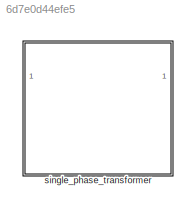
MODEL slx_6d7e0d44efe5
KIND library
CONFIG AbsTol = auto
CONFIG EnableMultiTasking = off
CONFIG FixedStep = auto
CONFIG MaxStep = auto
CONFIG MinStep = auto
CONFIG RelTol = 1e-3
CONFIG SampleTimeConstraint = Unconstrained
CONFIG SolverName = VariableStepAuto
CONFIG StartTime = 0.0
CONFIG StopTime = 10.0
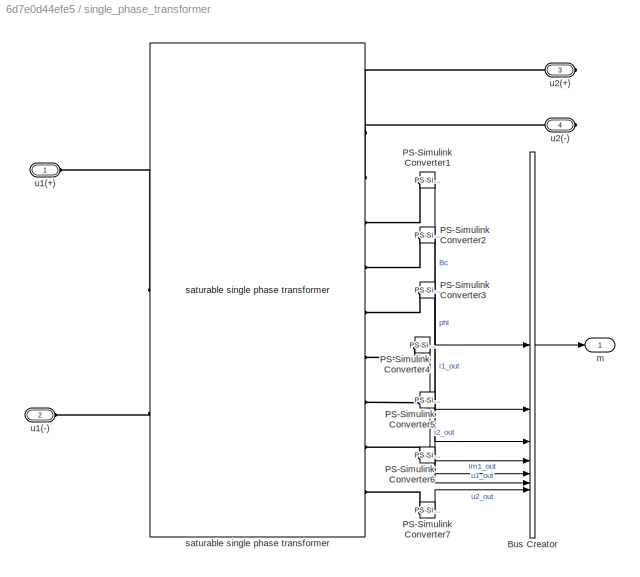
BLOCK [SubSystem] single_phase_transformer
  PortSchema = {"entries":[{"content":{"sides":[{"content":{"connectorIds":["LConn1","LConn2"]},"type":"ConnectorPlacement.EquallySpacedRectSide","uuid":"cc5083b3-98b5-4a35-b4ef-aa8e070b6479"},{"content":{"connectorIds":["RConn1","RConn2"],"side":"RIGHT"},"type":"ConnectorPlacement.EquallySpacedRectSide","uuid":"4f99e7ca-a3d1-47dd-a6e0-5288e9bf64fa"},{"content":{"connectorIds":["Out1"],"side":"TOP"},"type":"Conn...<+269ch>
BLOCK [BusCreator] single_phase_transformer/Bus Creator
  DisplayOption = bar
  InheritFromInputs = on
  Inputs = 7
BLOCK [Reference] single_phase_transformer/PS-Simulink Converter1  REF=nesl_utility/PS-Simulink
Converter
  SourceBlock = nesl_utility/PS-Simulink\nConverter
  SourceType = PS-Simulink\nConverter
BLOCK [Reference] single_phase_transformer/PS-Simulink Converter2  REF=nesl_utility/PS-Simulink
Converter
  SourceBlock = nesl_utility/PS-Simulink\nConverter
  SourceType = PS-Simulink\nConverter
BLOCK [Reference] single_phase_transformer/PS-Simulink Converter3  REF=nesl_utility/PS-Simulink
Converter
  SourceBlock = nesl_utility/PS-Simulink\nConverter
  SourceType = PS-Simulink\nConverter
BLOCK [Reference] single_phase_transformer/PS-Simulink Converter4  REF=nesl_utility/PS-Simulink
Converter
  SourceBlock = nesl_utility/PS-Simulink\nConverter
  SourceType = PS-Simulink\nConverter
BLOCK [Reference] single_phase_transformer/PS-Simulink Converter5  REF=nesl_utility/PS-Simulink
Converter
  SourceBlock = nesl_utility/PS-Simulink\nConverter
  SourceType = PS-Simulink\nConverter
BLOCK [Reference] single_phase_transformer/PS-Simulink Converter6  REF=nesl_utility/PS-Simulink
Converter
  SourceBlock = nesl_utility/PS-Simulink\nConverter
  SourceType = PS-Simulink\nConverter
BLOCK [Reference] single_phase_transformer/PS-Simulink Converter7  REF=nesl_utility/PS-Simulink
Converter
  SourceBlock = nesl_utility/PS-Simulink\nConverter
  SourceType = PS-Simulink\nConverter
BLOCK [Outport] single_phase_transformer/m
BLOCK [Reference] single_phase_transformer/saturable single phase transformer  REF=saturable_single_phase_transformer_lib/saturable single
phase transformer
  SourceBlock = saturable_single_phase_transformer_lib/saturable single\nphase transformer
  SourceType = saturable single\nphase transformer
BLOCK [PMIOPort] single_phase_transformer/u1(+)
  Side = Left
BLOCK [PMIOPort] single_phase_transformer/u1(-)
  Port = 2
  Side = Left
BLOCK [PMIOPort] single_phase_transformer/u2(+)
  Port = 3
  Side = Right
BLOCK [PMIOPort] single_phase_transformer/u2(-)
  Port = 4
  Side = Right
LINE single_phase_transformer/Bus Creator:1 -> single_phase_transformer/m:1
LINE single_phase_transformer/PS-Simulink Converter1:1 -> single_phase_transformer/Bus Creator:1
LINE single_phase_transformer/PS-Simulink Converter2:1 -> single_phase_transformer/Bus Creator:2
LINE single_phase_transformer/PS-Simulink Converter3:1 -> single_phase_transformer/Bus Creator:3
LINE single_phase_transformer/PS-Simulink Converter4:1 -> single_phase_transformer/Bus Creator:4
LINE single_phase_transformer/PS-Simulink Converter5:1 -> single_phase_transformer/Bus Creator:5
LINE single_phase_transformer/PS-Simulink Converter6:1 -> single_phase_transformer/Bus Creator:6
LINE single_phase_transformer/PS-Simulink Converter7:1 -> single_phase_transformer/Bus Creator:7
PLINE single_phase_transformer/PS-Simulink Converter1:LConn1 -- single_phase_transformer/saturable single phase transformer:RConn3
PLINE single_phase_transformer/PS-Simulink Converter2:LConn1 -- single_phase_transformer/saturable single phase transformer:RConn4
PLINE single_phase_transformer/PS-Simulink Converter3:LConn1 -- single_phase_transformer/saturable single phase transformer:RConn5
PLINE single_phase_transformer/PS-Simulink Converter4:LConn1 -- single_phase_transformer/saturable single phase transformer:RConn6
PLINE single_phase_transformer/PS-Simulink Converter5:LConn1 -- single_phase_transformer/saturable single phase transformer:RConn7
PLINE single_phase_transformer/PS-Simulink Converter6:LConn1 -- single_phase_transformer/saturable single phase transformer:RConn8
PLINE single_phase_transformer/PS-Simulink Converter7:LConn1 -- single_phase_transformer/saturable single phase transformer:RConn9
PLINE single_phase_transformer/saturable single phase transformer:LConn1 -- single_phase_transformer/u1(+):RConn1
PLINE single_phase_transformer/saturable single phase transformer:LConn2 -- single_phase_transformer/u1(-):RConn1
PLINE single_phase_transformer/saturable single phase transformer:RConn1 -- single_phase_transformer/u2(+):RConn1
PLINE single_phase_transformer/saturable single phase transformer:RConn2 -- single_phase_transformer/u2(-):RConn1
